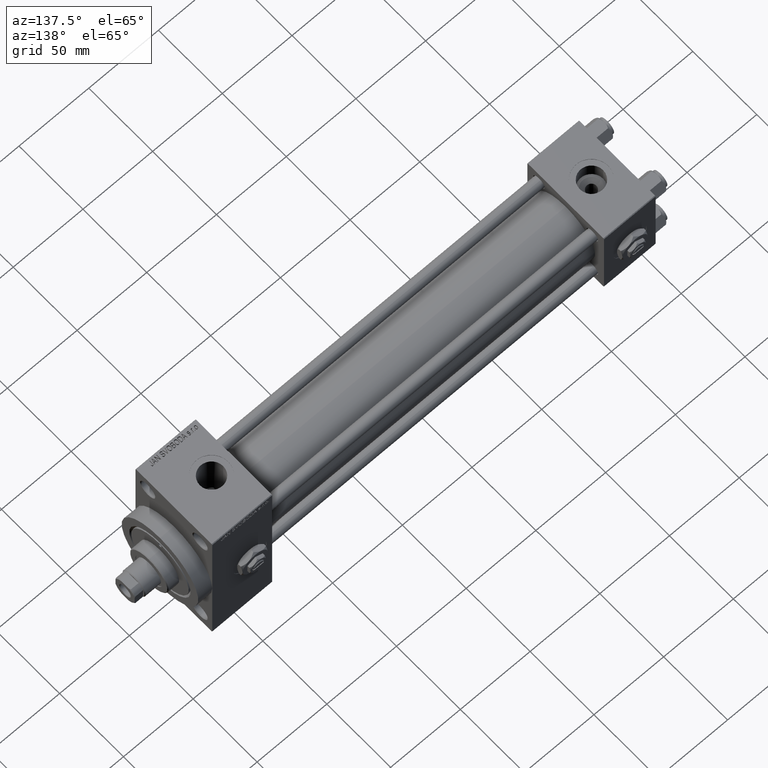
[diagram: clean part render]
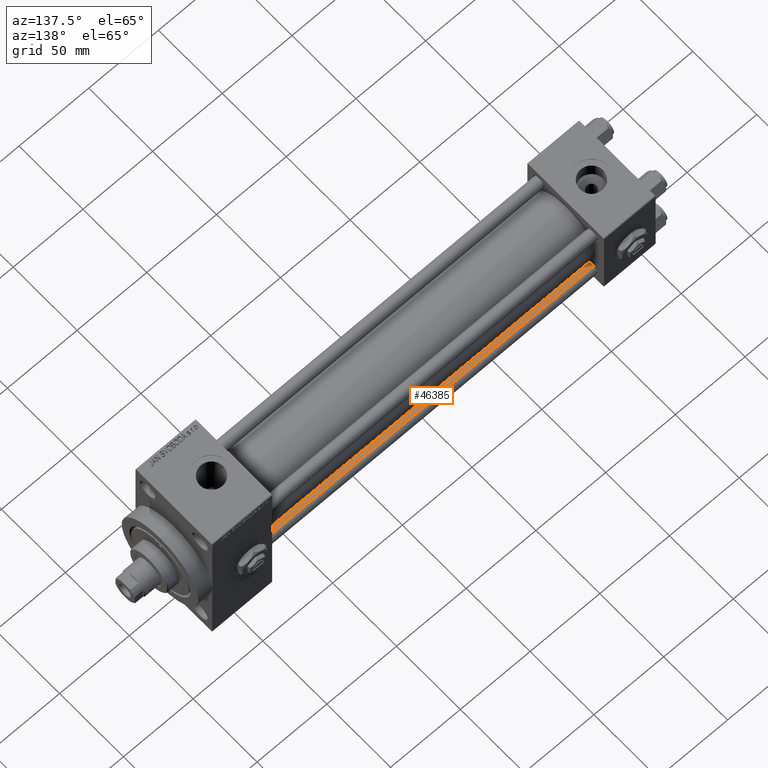
[diagram: same view with one face highlighted and labeled with its STEP entity id]
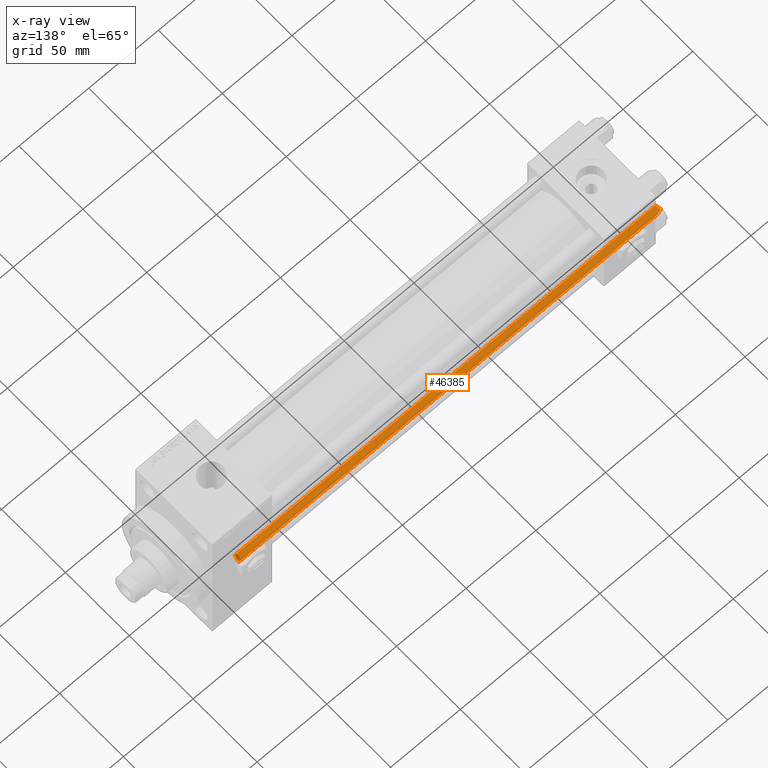
[diagram: x-ray of the same camera — body ghosted, the highlighted face saturated]
A machine part, auxiliary view. The second image highlights one B-rep face of the part: STEP entity #46385.
The next image is the same camera in x-ray: the body ghosted, the highlighted face saturated — about 1% of this face is hidden behind the body in this view.
In plain terms, the highlighted cylindrical surface (edge-blend (fillet) strip) has radius 4 mm, axis along (1, -0, 0).
Its self-contained STEP definition (entity closure, byte-faithful):
#224 = ORIENTED_EDGE ( 'NONE', *, *, #47746, .T. ) ;
#358 = ORIENTED_EDGE ( 'NONE', *, *, #23508, .T. ) ;
#392 = CARTESIAN_POINT ( 'NONE',  ( -4.000000000000000000, 0.000000000000000000, 301.4999999999999432 ) ) ;
#821 = AXIS2_PLACEMENT_3D ( 'NONE', #8523, #24049, #16775 ) ;
#1016 = CYLINDRICAL_SURFACE ( 'NONE', #821, 4.000000000000000000 ) ;
#2861 = CARTESIAN_POINT ( 'NONE',  ( 4.000000000000000000, 4.898587196589412829E-16, 0.5000000000000559552 ) ) ;
#3375 = DIRECTION ( 'NONE',  ( -0.000000000000000000, -0.000000000000000000, -1.000000000000000000 ) ) ;
#3736 = CARTESIAN_POINT ( 'NONE',  ( 0.000000000000000000, 0.000000000000000000, 0.5000000000000559552 ) ) ;
#4002 = VECTOR ( 'NONE', #3375, 1000.000000000000000 ) ;
#6105 = CARTESIAN_POINT ( 'NONE',  ( 0.000000000000000000, 0.000000000000000000, 301.4999999999999432 ) ) ;
#6596 = DIRECTION ( 'NONE',  ( 0.000000000000000000, 0.000000000000000000, -1.000000000000000000 ) ) ;
#7028 = EDGE_CURVE ( 'NONE', #20314, #47766, #22892, .T. ) ;
#7427 = AXIS2_PLACEMENT_3D ( 'NONE', #6105, #6596, #9870 ) ;
#8523 = CARTESIAN_POINT ( 'NONE',  ( 0.000000000000000000, 0.000000000000000000, 302.0000000000000000 ) ) ;
#8620 = ORIENTED_EDGE ( 'NONE', *, *, #19211, .F. ) ;
#8774 = FACE_OUTER_BOUND ( 'NONE', #28756, .T. ) ;
#9645 = LINE ( 'NONE', #41148, #45346 ) ;
#9870 = DIRECTION ( 'NONE',  ( 1.000000000000000000, 0.000000000000000000, 0.000000000000000000 ) ) ;
#16775 = DIRECTION ( 'NONE',  ( -1.000000000000000000, 0.000000000000000000, 0.000000000000000000 ) ) ;
#17304 = AXIS2_PLACEMENT_3D ( 'NONE', #3736, #23013, #19022 ) ;
#19022 = DIRECTION ( 'NONE',  ( 1.000000000000000000, 0.000000000000000000, 0.000000000000000000 ) ) ;
#19211 = EDGE_CURVE ( 'NONE', #47309, #47766, #22417, .T. ) ;
#20314 = VERTEX_POINT ( 'NONE', #35693 ) ;
#20332 = VERTEX_POINT ( 'NONE', #392 ) ;
#21666 = CARTESIAN_POINT ( 'NONE',  ( 4.000000000000000000, 4.898587196589412829E-16, 302.0000000000000000 ) ) ;
#22417 = LINE ( 'NONE', #21666, #4002 ) ;
#22632 = CIRCLE ( 'NONE', #7427, 4.000000000000000000 ) ;
#22892 = CIRCLE ( 'NONE', #17304, 4.000000000000000000 ) ;
#23013 = DIRECTION ( 'NONE',  ( -0.000000000000000000, -0.000000000000000000, 1.000000000000000000 ) ) ;
#23102 = ORIENTED_EDGE ( 'NONE', *, *, #7028, .T. ) ;
#23508 = EDGE_CURVE ( 'NONE', #47309, #20332, #22632, .T. ) ;
#24049 = DIRECTION ( 'NONE',  ( -0.000000000000000000, -0.000000000000000000, -1.000000000000000000 ) ) ;
#24911 = DIRECTION ( 'NONE',  ( -0.000000000000000000, -0.000000000000000000, -1.000000000000000000 ) ) ;
#28756 = EDGE_LOOP ( 'NONE', ( #8620, #358, #224, #23102 ) ) ;
#32233 = CARTESIAN_POINT ( 'NONE',  ( 4.000000000000000000, 4.898587196589412829E-16, 301.4999999999999432 ) ) ;
#35693 = CARTESIAN_POINT ( 'NONE',  ( -4.000000000000000000, 0.000000000000000000, 0.5000000000000559552 ) ) ;
#41148 = CARTESIAN_POINT ( 'NONE',  ( -4.000000000000000000, 0.000000000000000000, 302.0000000000000000 ) ) ;
#45346 = VECTOR ( 'NONE', #24911, 1000.000000000000000 ) ;
#46385 = ADVANCED_FACE ( 'NONE', ( #8774 ), #1016, .T. ) ;
#47309 = VERTEX_POINT ( 'NONE', #32233 ) ;
#47746 = EDGE_CURVE ( 'NONE', #20332, #20314, #9645, .T. ) ;
#47766 = VERTEX_POINT ( 'NONE', #2861 ) ;